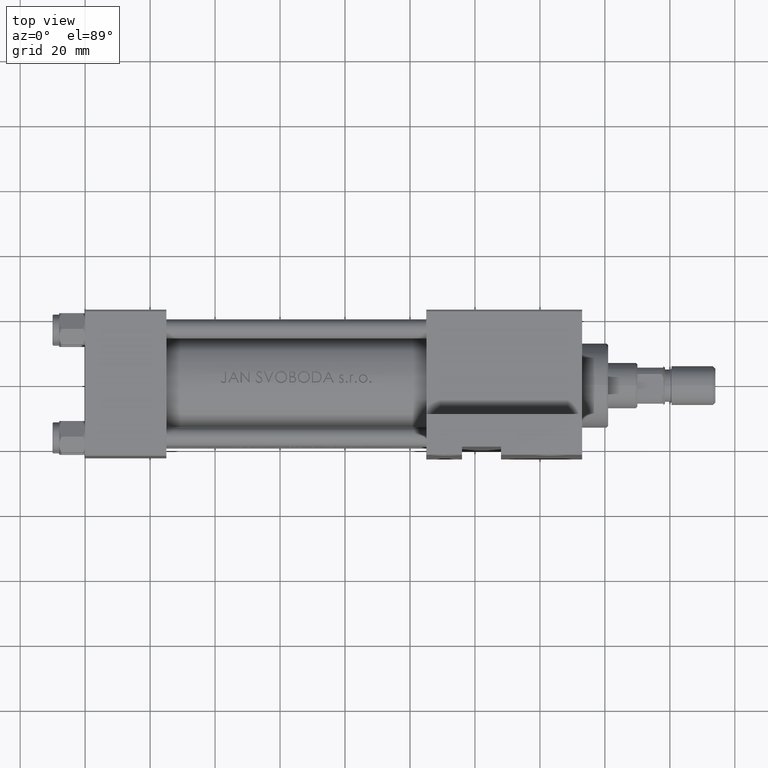
[diagram: clean part render]
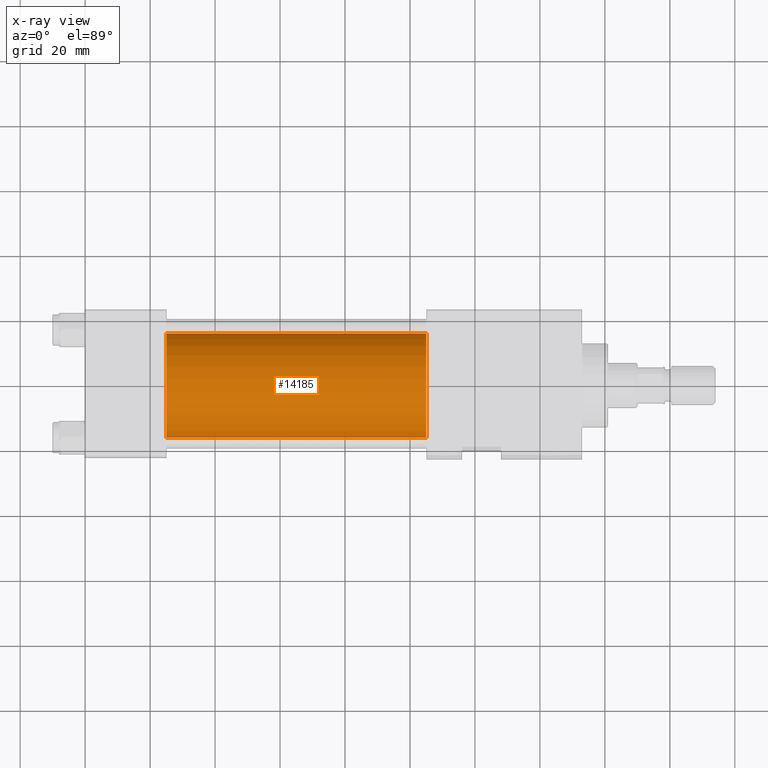
[diagram: x-ray — body ghosted, one internal face saturated and labeled with its STEP entity id]
A machine part, top view, then the same camera in x-ray: the body is ghosted and one INTERNAL B-rep face — a face not visible from any outside direction — is saturated and labeled: STEP entity #14185.
In plain terms, the highlighted cylindrical surface (partial cylindrical patch) has radius 16 mm, axis along (-1, -0, 0).
Its self-contained STEP definition (entity closure, byte-faithful):
#463 = AXIS2_PLACEMENT_3D ( 'NONE', #10579, #47625, #13997 ) ;
#1896 = CIRCLE ( 'NONE', #31460, 16.00000000000000000 ) ;
#2801 = ORIENTED_EDGE ( 'NONE', *, *, #32238, .F. ) ;
#3867 = VERTEX_POINT ( 'NONE', #35387 ) ;
#5540 = EDGE_CURVE ( 'NONE', #10043, #38010, #40697, .T. ) ;
#6415 = DIRECTION ( 'NONE',  ( 0.000000000000000000, 0.000000000000000000, -1.000000000000000000 ) ) ;
#6449 = FACE_OUTER_BOUND ( 'NONE', #19046, .T. ) ;
#7382 = DIRECTION ( 'NONE',  ( -1.000000000000000000, -0.000000000000000000, -0.000000000000000000 ) ) ;
#10043 = VERTEX_POINT ( 'NONE', #26972 ) ;
#10579 = CARTESIAN_POINT ( 'NONE',  ( 105.0000000000000142, 6.123233995736727825E-17, -0.4999999999999970024 ) ) ;
#11410 = EDGE_CURVE ( 'NONE', #38010, #3867, #15948, .T. ) ;
#13997 = DIRECTION ( 'NONE',  ( 0.000000000000000000, 0.000000000000000000, 1.000000000000000000 ) ) ;
#14185 = ADVANCED_FACE ( 'NONE', ( #6449 ), #26584, .F. ) ;
#14523 = VERTEX_POINT ( 'NONE', #46019 ) ;
#15948 = LINE ( 'NONE', #18459, #38466 ) ;
#18459 = CARTESIAN_POINT ( 'NONE',  ( 105.0000000000000142, 2.020667218593132311E-15, -16.49999999999999645 ) ) ;
#19046 = EDGE_LOOP ( 'NONE', ( #36953, #38752, #22267, #2801 ) ) ;
#21531 = CARTESIAN_POINT ( 'NONE',  ( 25.00000000000000000, 6.123233995736727825E-17, -0.4999999999999970024 ) ) ;
#22267 = ORIENTED_EDGE ( 'NONE', *, *, #37996, .F. ) ;
#22325 = DIRECTION ( 'NONE',  ( 0.000000000000000000, 0.000000000000000000, -1.000000000000000000 ) ) ;
#25921 = AXIS2_PLACEMENT_3D ( 'NONE', #40840, #44497, #22325 ) ;
#26584 = CYLINDRICAL_SURFACE ( 'NONE', #463, 16.00000000000000000 ) ;
#26972 = CARTESIAN_POINT ( 'NONE',  ( 105.0000000000000142, 6.123233995736727825E-17, 15.50000000000000355 ) ) ;
#28839 = CARTESIAN_POINT ( 'NONE',  ( 105.0000000000000142, 6.123233995736727825E-17, 15.50000000000000355 ) ) ;
#31460 = AXIS2_PLACEMENT_3D ( 'NONE', #21531, #39786, #6415 ) ;
#32238 = EDGE_CURVE ( 'NONE', #10043, #14523, #32983, .T. ) ;
#32983 = LINE ( 'NONE', #28839, #39118 ) ;
#33563 = DIRECTION ( 'NONE',  ( -1.000000000000000000, -0.000000000000000000, -0.000000000000000000 ) ) ;
#35387 = CARTESIAN_POINT ( 'NONE',  ( 25.00000000000000000, 2.020667218593132311E-15, -16.49999999999999645 ) ) ;
#35680 = CARTESIAN_POINT ( 'NONE',  ( 105.0000000000000142, 2.020667218593132311E-15, -16.49999999999999645 ) ) ;
#36953 = ORIENTED_EDGE ( 'NONE', *, *, #5540, .T. ) ;
#37996 = EDGE_CURVE ( 'NONE', #14523, #3867, #1896, .T. ) ;
#38010 = VERTEX_POINT ( 'NONE', #35680 ) ;
#38466 = VECTOR ( 'NONE', #33563, 1000.000000000000000 ) ;
#38752 = ORIENTED_EDGE ( 'NONE', *, *, #11410, .T. ) ;
#39118 = VECTOR ( 'NONE', #7382, 1000.000000000000000 ) ;
#39786 = DIRECTION ( 'NONE',  ( 1.000000000000000000, 0.000000000000000000, 0.000000000000000000 ) ) ;
#40697 = CIRCLE ( 'NONE', #25921, 16.00000000000000000 ) ;
#40840 = CARTESIAN_POINT ( 'NONE',  ( 105.0000000000000142, 6.123233995736727825E-17, -0.4999999999999970024 ) ) ;
#44497 = DIRECTION ( 'NONE',  ( 1.000000000000000000, 0.000000000000000000, 0.000000000000000000 ) ) ;
#46019 = CARTESIAN_POINT ( 'NONE',  ( 25.00000000000000000, 6.123233995736727825E-17, 15.50000000000000355 ) ) ;
#47625 = DIRECTION ( 'NONE',  ( -1.000000000000000000, -0.000000000000000000, -0.000000000000000000 ) ) ;